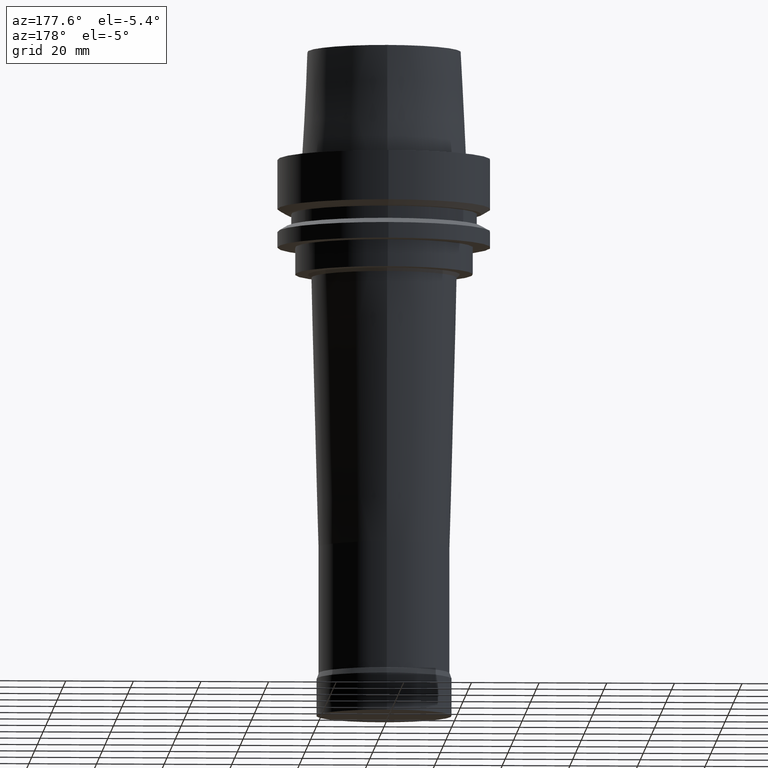
[diagram: clean part render]
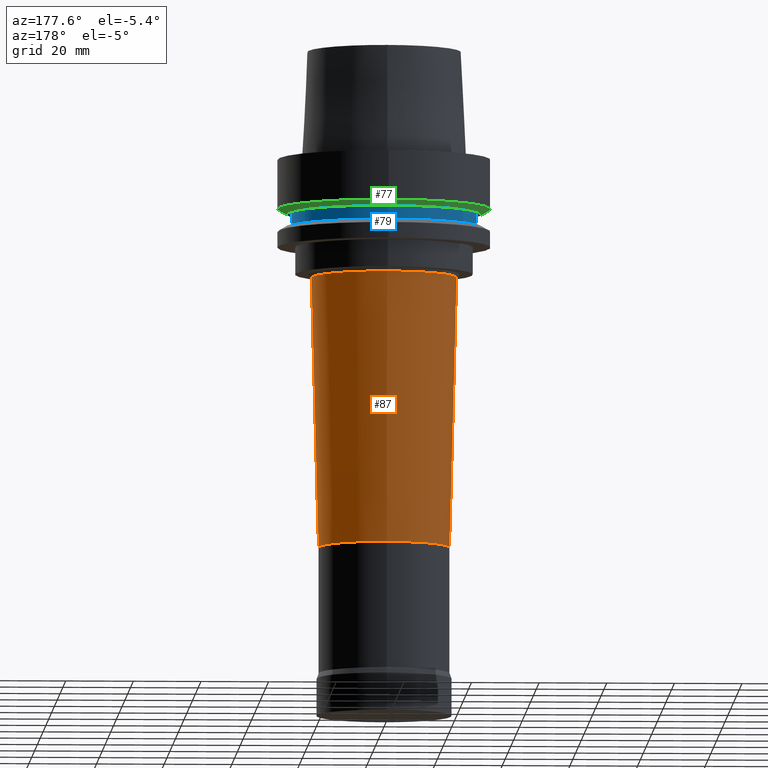
[diagram: same view with three faces highlighted in distinct colors, each labeled with its STEP entity id]
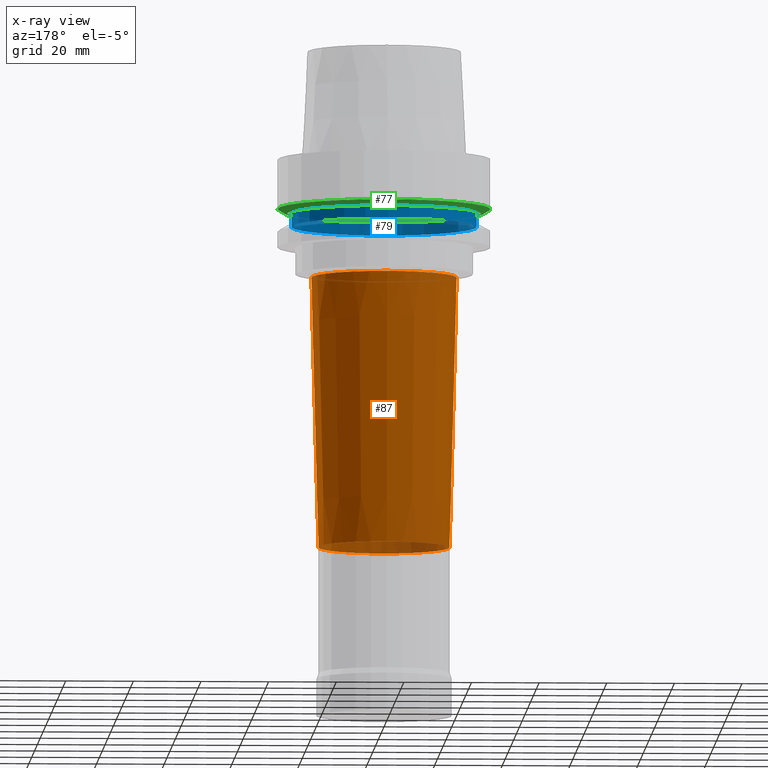
[diagram: x-ray of the same camera — body ghosted, the three highlighted faces saturated]
A machine part, auxiliary view with three faces highlighted in distinct colors.
The next image is the same camera in x-ray (body ghosted, the three faces saturated) — at least one of them is partly hidden behind the body in this view.
Their STEP definitions:

[orange] entity #87 — the highlighted conical surface has half-angle 1.504 deg.
#87=ADVANCED_FACE('',(#131,#132),#133,.T.);
#131=FACE_BOUND('',#186,.T.);
#132=FACE_BOUND('',#187,.T.);
#133=CONICAL_SURFACE('',#188,20.4505252696709,0.0262420909819956);
#186=EDGE_LOOP('',(#265));
#187=EDGE_LOOP('',(#266));
#188=AXIS2_PLACEMENT_3D('',#267,#268,#269);
#265=ORIENTED_EDGE('',*,*,#311,.F.);
#266=ORIENTED_EDGE('',*,*,#310,.T.);
#267=CARTESIAN_POINT('',(4.59102061506136E-015,9.18204123012272E-015,-74.9770565400213));
#268=DIRECTION('',(-6.12323399573676E-017,-1.22464679914735E-016,1.0));
#269=DIRECTION('',(-1.23259516440783E-032,1.0,1.22464679914735E-016));
#310=EDGE_CURVE('',#340,#340,#341,.T.);
#311=EDGE_CURVE('',#342,#342,#343,.T.);
#340=VERTEX_POINT('',#376);
#341=CIRCLE('',#377,21.5010505393417);
#342=VERTEX_POINT('',#378);
#343=CIRCLE('',#379,19.4);
#376=CARTESIAN_POINT('',(2.14032589684832E-015,21.5010505393417,-34.9541745152725));
#377=AXIS2_PLACEMENT_3D('',#424,#425,#426);
#378=CARTESIAN_POINT('',(7.04171533327441E-015,19.4,-114.99993856477));
#379=AXIS2_PLACEMENT_3D('',#427,#428,#429);
#424=CARTESIAN_POINT('',(2.14032589684832E-015,4.28065179369664E-015,-34.9541745152725));
#425=DIRECTION('',(6.12323399573677E-017,1.22464679914735E-016,-1.0));
#426=DIRECTION('',(-1.23259516440783E-032,1.0,1.22464679914735E-016));
#427=CARTESIAN_POINT('',(7.04171533327441E-015,1.40834306665488E-014,-114.99993856477));
#428=DIRECTION('',(6.12323399573677E-017,1.22464679914735E-016,-1.0));
#429=DIRECTION('',(-1.23259516440783E-032,1.0,1.22464679914735E-016));

[blue] entity #79 — the highlighted cylindrical surface (bore or boss wall) has radius 27.5 mm, axis along (-0, -0, 1).
#79=ADVANCED_FACE('',(#107,#108),#109,.T.);
#107=FACE_BOUND('',#162,.T.);
#108=FACE_BOUND('',#163,.T.);
#109=CYLINDRICAL_SURFACE('',#164,27.5);
#162=EDGE_LOOP('',(#225));
#163=EDGE_LOOP('',(#226));
#164=AXIS2_PLACEMENT_3D('',#227,#228,#229);
#225=ORIENTED_EDGE('',*,*,#303,.F.);
#226=ORIENTED_EDGE('',*,*,#302,.T.);
#227=CARTESIAN_POINT('',(1.10218211923262E-015,2.20436423846524E-015,-18.0));
#228=DIRECTION('',(-6.12323399573677E-017,-1.22464679914735E-016,1.0));
#229=DIRECTION('',(-1.23259516440783E-032,1.0,1.22464679914735E-016));
#302=EDGE_CURVE('',#324,#324,#325,.T.);
#303=EDGE_CURVE('',#326,#326,#327,.T.);
#324=VERTEX_POINT('',#360);
#325=CIRCLE('',#361,27.5);
#326=VERTEX_POINT('',#362);
#327=CIRCLE('',#363,27.5);
#360=CARTESIAN_POINT('',(9.87371481812553E-016,27.5,-16.125));
#361=AXIS2_PLACEMENT_3D('',#400,#401,#402);
#362=CARTESIAN_POINT('',(1.21699275665268E-015,27.5,-19.875));
#363=AXIS2_PLACEMENT_3D('',#403,#404,#405);
#400=CARTESIAN_POINT('',(9.87371481812553E-016,1.97474296362511E-015,-16.125));
#401=DIRECTION('',(6.12323399573677E-017,1.22464679914735E-016,-1.0));
#402=DIRECTION('',(-1.23259516440783E-032,1.0,1.22464679914735E-016));
#403=CARTESIAN_POINT('',(1.21699275665268E-015,2.43398551330536E-015,-19.875));
#404=DIRECTION('',(6.12323399573677E-017,1.22464679914735E-016,-1.0));
#405=DIRECTION('',(-1.23259516440783E-032,1.0,1.22464679914735E-016));

[green] entity #77 — the highlighted conical surface has half-angle 60 deg.
#77=ADVANCED_FACE('',(#101,#102),#103,.T.);
#101=FACE_BOUND('',#156,.T.);
#102=FACE_BOUND('',#157,.T.);
#103=CONICAL_SURFACE('',#158,30.19879763,1.04719755326565);
#156=EDGE_LOOP('',(#215));
#157=EDGE_LOOP('',(#216));
#158=AXIS2_PLACEMENT_3D('',#217,#218,#219);
#215=ORIENTED_EDGE('',*,*,#301,.F.);
#216=ORIENTED_EDGE('',*,*,#300,.T.);
#217=CARTESIAN_POINT('',(9.41370714892619E-016,1.88274142978524E-015,-15.373750465));
#218=DIRECTION('',(-6.12323399573677E-017,-1.22464679914735E-016,1.0));
#219=DIRECTION('',(-1.23259516440783E-032,1.0,1.22464679914735E-016));
#300=EDGE_CURVE('',#320,#320,#321,.T.);
#301=EDGE_CURVE('',#322,#322,#323,.T.);
#320=VERTEX_POINT('',#356);
#321=CIRCLE('',#357,31.5);
#322=VERTEX_POINT('',#358);
#323=CIRCLE('',#359,28.89759526);
#356=CARTESIAN_POINT('',(8.95369947972684E-016,31.5,-14.62250093));
#357=AXIS2_PLACEMENT_3D('',#394,#395,#396);
#358=CARTESIAN_POINT('',(9.87371481812553E-016,28.89759526,-16.125));
#359=AXIS2_PLACEMENT_3D('',#397,#398,#399);
#394=CARTESIAN_POINT('',(8.95369947972685E-016,1.79073989594537E-015,-14.62250093));
#395=DIRECTION('',(6.12323399573677E-017,1.22464679914735E-016,-1.0));
#396=DIRECTION('',(-1.23259516440783E-032,1.0,1.22464679914735E-016));
#397=CARTESIAN_POINT('',(9.87371481812553E-016,1.97474296362511E-015,-16.125));
#398=DIRECTION('',(6.12323399573677E-017,1.22464679914735E-016,-1.0));
#399=DIRECTION('',(-1.23259516440783E-032,1.0,1.22464679914735E-016));